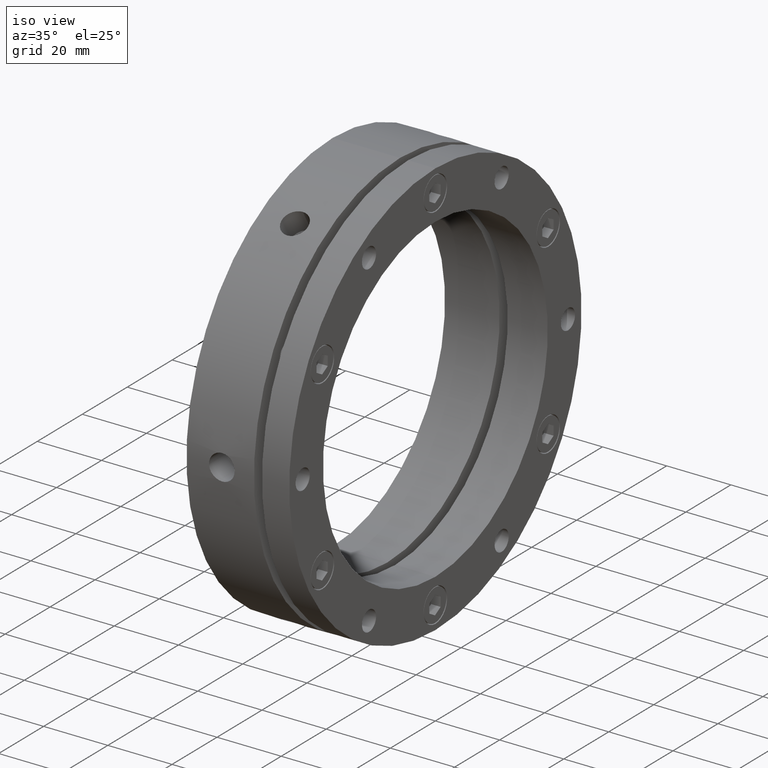
[diagram: clean part render]
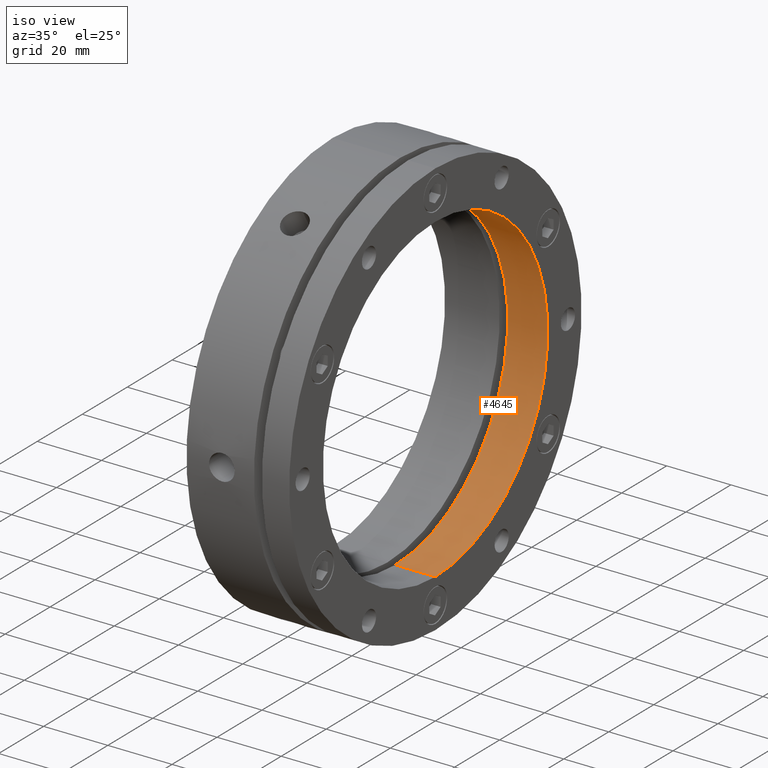
[diagram: same view with one face highlighted and labeled with its STEP entity id]
A machine part, iso view. The second image highlights one B-rep face of the part: STEP entity #4645.
In plain terms, the highlighted cylindrical surface (partial cylindrical patch) has radius 50 mm, axis along (1, 0, 0).
Its self-contained STEP definition (entity closure, byte-faithful):
#93 = CYLINDRICAL_SURFACE ( 'NONE', #3901, 50.00000000000000000 ) ;
#102 = FACE_OUTER_BOUND ( 'NONE', #3406, .T. ) ;
#160 = VERTEX_POINT ( 'NONE', #4331 ) ;
#345 = CIRCLE ( 'NONE', #4117, 50.00000000000000000 ) ;
#396 = EDGE_CURVE ( 'NONE', #3256, #3264, #3959, .T. ) ;
#400 = EDGE_CURVE ( 'NONE', #160, #3192, #3951, .T. ) ;
#443 = EDGE_CURVE ( 'NONE', #3256, #160, #2899, .T. ) ;
#569 = EDGE_CURVE ( 'NONE', #3264, #3192, #345, .T. ) ;
#606 = CARTESIAN_POINT ( 'NONE',  ( 15.99999999999998600, 6.123233995736766100E-015, 50.00000000000000000 ) ) ;
#619 = DIRECTION ( 'NONE',  ( 1.000000000000000000, 0.0000000000000000000, 0.0000000000000000000 ) ) ;
#623 = CARTESIAN_POINT ( 'NONE',  ( 15.99999999999998600, 0.0000000000000000000, -50.00000000000000000 ) ) ;
#624 = DIRECTION ( 'NONE',  ( 1.000000000000000000, 0.0000000000000000000, 0.0000000000000000000 ) ) ;
#738 = CARTESIAN_POINT ( 'NONE',  ( 19.49999999999999600, 0.0000000000000000000, 0.0000000000000000000 ) ) ;
#739 = DIRECTION ( 'NONE',  ( -1.000000000000000000, -0.0000000000000000000, -0.0000000000000000000 ) ) ;
#740 = DIRECTION ( 'NONE',  ( 0.0000000000000000000, 0.0000000000000000000, -1.000000000000000000 ) ) ;
#1164 = CARTESIAN_POINT ( 'NONE',  ( 31.99999999999998600, 0.0000000000000000000, 0.0000000000000000000 ) ) ;
#1165 = DIRECTION ( 'NONE',  ( -1.000000000000000000, -0.0000000000000000000, -0.0000000000000000000 ) ) ;
#1166 = DIRECTION ( 'NONE',  ( 0.0000000000000000000, 0.0000000000000000000, -1.000000000000000000 ) ) ;
#1237 = CARTESIAN_POINT ( 'NONE',  ( 31.99999999999998600, 0.0000000000000000000, -50.00000000000000000 ) ) ;
#1312 = CARTESIAN_POINT ( 'NONE',  ( 19.49999999999999600, 6.123233995736766100E-015, 50.00000000000000000 ) ) ;
#1314 = CARTESIAN_POINT ( 'NONE',  ( 31.99999999999998600, 6.123233995736766100E-015, 50.00000000000000000 ) ) ;
#1754 = DIRECTION ( 'NONE',  ( 0.0000000000000000000, 0.0000000000000000000, -1.000000000000000000 ) ) ;
#1756 = DIRECTION ( 'NONE',  ( 1.000000000000000000, 0.0000000000000000000, 0.0000000000000000000 ) ) ;
#1758 = CARTESIAN_POINT ( 'NONE',  ( 15.99999999999998600, 0.0000000000000000000, 0.0000000000000000000 ) ) ;
#2899 = CIRCLE ( 'NONE', #4194, 50.00000000000000000 ) ;
#3000 = ORIENTED_EDGE ( 'NONE', *, *, #569, .F. ) ;
#3001 = ORIENTED_EDGE ( 'NONE', *, *, #400, .T. ) ;
#3002 = ORIENTED_EDGE ( 'NONE', *, *, #443, .T. ) ;
#3003 = ORIENTED_EDGE ( 'NONE', *, *, #396, .F. ) ;
#3192 = VERTEX_POINT ( 'NONE', #1237 ) ;
#3256 = VERTEX_POINT ( 'NONE', #1312 ) ;
#3264 = VERTEX_POINT ( 'NONE', #1314 ) ;
#3406 = EDGE_LOOP ( 'NONE', ( #3003, #3002, #3001, #3000 ) ) ;
#3901 = AXIS2_PLACEMENT_3D ( 'NONE', #1758, #1756, #1754 ) ;
#3949 = VECTOR ( 'NONE', #624, 1000.000000000000000 ) ;
#3951 = LINE ( 'NONE', #623, #3949 ) ;
#3954 = VECTOR ( 'NONE', #619, 1000.000000000000000 ) ;
#3959 = LINE ( 'NONE', #606, #3954 ) ;
#4117 = AXIS2_PLACEMENT_3D ( 'NONE', #1164, #1165, #1166 ) ;
#4194 = AXIS2_PLACEMENT_3D ( 'NONE', #738, #739, #740 ) ;
#4331 = CARTESIAN_POINT ( 'NONE',  ( 19.49999999999999600, 0.0000000000000000000, -50.00000000000000000 ) ) ;
#4645 = ADVANCED_FACE ( 'NONE', ( #102 ), #93, .F. ) ;